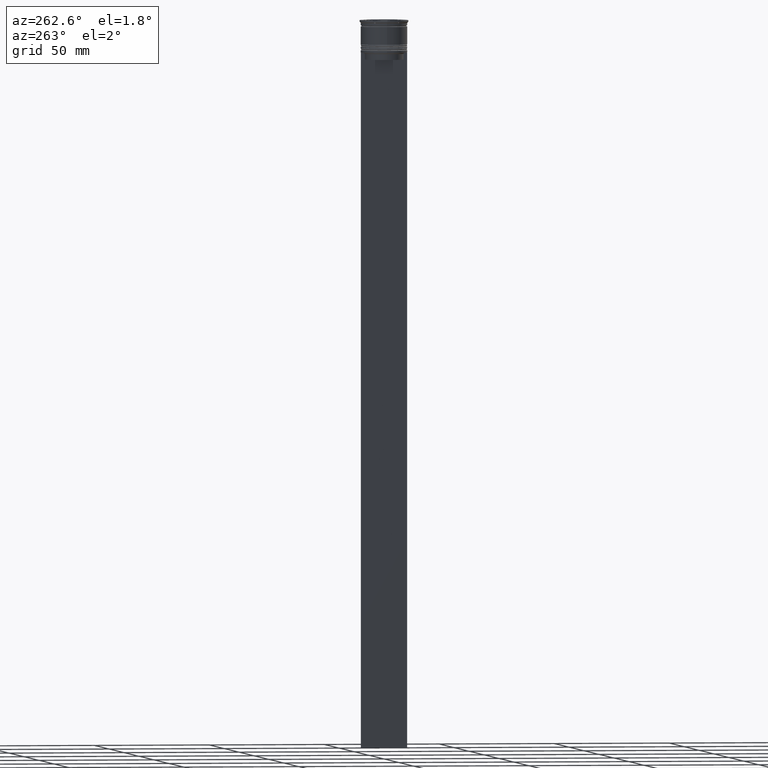
[diagram: clean part render]
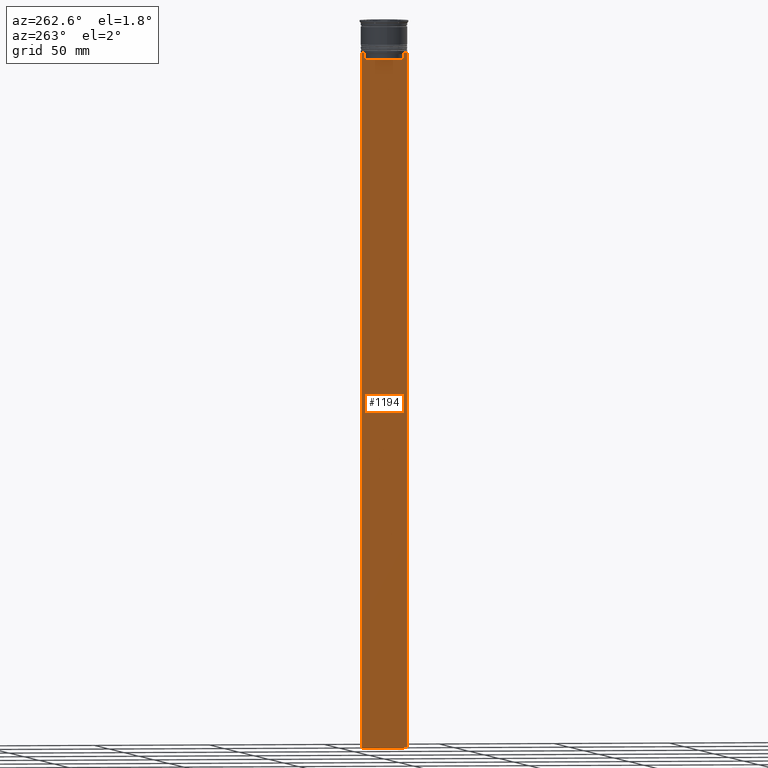
[diagram: same view with one face highlighted and labeled with its STEP entity id]
A machine part, auxiliary view. The second image highlights one B-rep face of the part: STEP entity #1194.
In plain terms, the highlighted planar face has unit normal (-1, 0, 0).
Its self-contained STEP definition (entity closure, byte-faithful):
#24 = VECTOR ( 'NONE', #210, 1000.000000000000000 ) ;
#39 = DIRECTION ( 'NONE',  ( 0.000000000000000000, 1.000000000000000000, 0.000000000000000000 ) ) ;
#84 = DIRECTION ( 'NONE',  ( 0.000000000000000000, 0.000000000000000000, -1.000000000000000000 ) ) ;
#210 = DIRECTION ( 'NONE',  ( 0.000000000000000000, -1.000000000000000000, 0.000000000000000000 ) ) ;
#305 = DIRECTION ( 'NONE',  ( 0.000000000000000000, -1.000000000000000000, 0.000000000000000000 ) ) ;
#307 = ORIENTED_EDGE ( 'NONE', *, *, #553, .F. ) ;
#330 = CARTESIAN_POINT ( 'NONE',  ( -0.5000000000000000000, -8.385105843100616241, -17.00000000000000000 ) ) ;
#364 = VECTOR ( 'NONE', #1389, 1000.000000000000000 ) ;
#365 = DIRECTION ( 'NONE',  ( -1.000000000000000000, 0.000000000000000000, 0.000000000000000000 ) ) ;
#379 = DIRECTION ( 'NONE',  ( 0.000000000000000000, 0.000000000000000000, -1.000000000000000000 ) ) ;
#400 = VECTOR ( 'NONE', #379, 1000.000000000000000 ) ;
#404 = CARTESIAN_POINT ( 'NONE',  ( -0.5000000000000000000, 8.885943956609230199, -14.00000000000000178 ) ) ;
#420 = EDGE_CURVE ( 'NONE', #2131, #2419, #1682, .T. ) ;
#446 = CARTESIAN_POINT ( 'NONE',  ( -0.5000000000000000000, -10.00000000000000178, -14.00000000000000178 ) ) ;
#473 = CARTESIAN_POINT ( 'NONE',  ( -0.5000000000000000000, 8.400000000000003908, -17.00000000000000000 ) ) ;
#511 = CARTESIAN_POINT ( 'NONE',  ( -0.5000000000000000000, -10.00000000000000178, -14.00000000000000178 ) ) ;
#534 = CARTESIAN_POINT ( 'NONE',  ( -0.5000000000000000000, 8.885943956609230199, -14.00000000000000178 ) ) ;
#553 = EDGE_CURVE ( 'NONE', #2419, #1546, #1567, .T. ) ;
#633 = LINE ( 'NONE', #2560, #1360 ) ;
#687 = CARTESIAN_POINT ( 'NONE',  ( -0.5000000000000000000, -10.00000000000000178, -14.00000000000000178 ) ) ;
#708 = ORIENTED_EDGE ( 'NONE', *, *, #1463, .F. ) ;
#729 = VERTEX_POINT ( 'NONE', #330 ) ;
#781 = CARTESIAN_POINT ( 'NONE',  ( -0.5000000000000000000, -10.00000000000000178, 6.024984394500783047 ) ) ;
#787 = CARTESIAN_POINT ( 'NONE',  ( -0.5000000000000000000, -8.385105843100616241, 0.000000000000000000 ) ) ;
#818 = LINE ( 'NONE', #1871, #2546 ) ;
#899 = VERTEX_POINT ( 'NONE', #404 ) ;
#903 = ORIENTED_EDGE ( 'NONE', *, *, #1733, .F. ) ;
#939 = CARTESIAN_POINT ( 'NONE',  ( -0.5000000000000000000, -8.385105843100616241, -14.50000000000000000 ) ) ;
#944 = CARTESIAN_POINT ( 'NONE',  ( -0.5000000000000000000, 8.385105843100616241, 0.000000000000000000 ) ) ;
#957 = VERTEX_POINT ( 'NONE', #446 ) ;
#984 = EDGE_CURVE ( 'NONE', #1068, #1340, #1777, .T. ) ;
#1019 = ORIENTED_EDGE ( 'NONE', *, *, #1878, .F. ) ;
#1068 = VERTEX_POINT ( 'NONE', #1334 ) ;
#1069 = CARTESIAN_POINT ( 'NONE',  ( -0.5000000000000000000, 8.385105843100616241, -17.00000000000000000 ) ) ;
#1097 = LINE ( 'NONE', #1949, #2538 ) ;
#1121 = DIRECTION ( 'NONE',  ( 0.000000000000000000, -1.000000000000000000, 0.000000000000000000 ) ) ;
#1125 = ORIENTED_EDGE ( 'NONE', *, *, #2284, .T. ) ;
#1142 = DIRECTION ( 'NONE',  ( 0.000000000000000000, 0.000000000000000000, -1.000000000000000000 ) ) ;
#1194 = ADVANCED_FACE ( 'NONE', ( #2394 ), #2056, .T. ) ;
#1230 = EDGE_CURVE ( 'NONE', #899, #1068, #1876, .T. ) ;
#1244 = LINE ( 'NONE', #2289, #24 ) ;
#1284 = VERTEX_POINT ( 'NONE', #2004 ) ;
#1332 = CARTESIAN_POINT ( 'NONE',  ( -0.5000000000000000000, -9.887365675446622149, -14.00000000000000178 ) ) ;
#1334 = CARTESIAN_POINT ( 'NONE',  ( -0.5000000000000000000, 8.385105843100616241, -14.50000000000000000 ) ) ;
#1340 = VERTEX_POINT ( 'NONE', #1069 ) ;
#1352 = ORIENTED_EDGE ( 'NONE', *, *, #1854, .F. ) ;
#1360 = VECTOR ( 'NONE', #84, 1000.000000000000000 ) ;
#1389 = DIRECTION ( 'NONE',  ( -0.000000000000000000, -0.000000000000000000, 1.000000000000000000 ) ) ;
#1394 = DIRECTION ( 'NONE',  ( 0.000000000000000000, -1.000000000000000000, 0.000000000000000000 ) ) ;
#1397 = CARTESIAN_POINT ( 'NONE',  ( -0.5000000000000000000, 8.552060201981381837, -14.33334167021640226 ) ) ;
#1423 = LINE ( 'NONE', #2263, #400 ) ;
#1463 = EDGE_CURVE ( 'NONE', #2588, #1967, #1963, .T. ) ;
#1503 = CARTESIAN_POINT ( 'NONE',  ( -0.5000000000000000000, -8.885943956609230199, -14.00000000000000178 ) ) ;
#1546 = VERTEX_POINT ( 'NONE', #1332 ) ;
#1557 = EDGE_CURVE ( 'NONE', #1967, #899, #1097, .T. ) ;
#1567 = LINE ( 'NONE', #511, #2235 ) ;
#1578 = ORIENTED_EDGE ( 'NONE', *, *, #1557, .F. ) ;
#1592 = ORIENTED_EDGE ( 'NONE', *, *, #984, .F. ) ;
#1622 = CARTESIAN_POINT ( 'NONE',  ( -0.5000000000000000000, 8.719005771582351016, -14.16667453442324742 ) ) ;
#1682 = B_SPLINE_CURVE_WITH_KNOTS ( 'NONE', 3,
 ( #1846, #2444, #2664, #1867 ),
 .UNSPECIFIED., .F., .F.,
 ( 4, 4 ),
 ( 0.03898465126933132324, 0.03969388910599660342 ),
 .UNSPECIFIED. ) ;
#1705 = AXIS2_PLACEMENT_3D ( 'NONE', #781, #365, #2409 ) ;
#1733 = EDGE_CURVE ( 'NONE', #1546, #957, #1244, .T. ) ;
#1777 = LINE ( 'NONE', #944, #2576 ) ;
#1827 = LINE ( 'NONE', #787, #364 ) ;
#1846 = CARTESIAN_POINT ( 'NONE',  ( -0.5000000000000000000, -8.385105843100616241, -14.50000000000000000 ) ) ;
#1854 = EDGE_CURVE ( 'NONE', #957, #2572, #633, .T. ) ;
#1867 = CARTESIAN_POINT ( 'NONE',  ( -0.5000000000000000000, -8.885943956609230199, -14.00000000000000178 ) ) ;
#1871 = CARTESIAN_POINT ( 'NONE',  ( -0.5000000000000000000, -10.00000000000000178, -314.0000000000000000 ) ) ;
#1876 = B_SPLINE_CURVE_WITH_KNOTS ( 'NONE', 3,
 ( #534, #1622, #1397, #2627 ),
 .UNSPECIFIED., .F., .F.,
 ( 4, 4 ),
 ( 0.01511546479386908018, 0.01582316445439079997 ),
 .UNSPECIFIED. ) ;
#1878 = EDGE_CURVE ( 'NONE', #1340, #729, #2139, .T. ) ;
#1930 = ORIENTED_EDGE ( 'NONE', *, *, #420, .F. ) ;
#1938 = VECTOR ( 'NONE', #305, 1000.000000000000000 ) ;
#1949 = CARTESIAN_POINT ( 'NONE',  ( -0.5000000000000000000, -10.00000000000000178, -14.00000000000000178 ) ) ;
#1963 = LINE ( 'NONE', #687, #1938 ) ;
#1967 = VERTEX_POINT ( 'NONE', #2366 ) ;
#2004 = CARTESIAN_POINT ( 'NONE',  ( -0.5000000000000000000, 9.999999999999998224, -314.0000000000000000 ) ) ;
#2053 = ORIENTED_EDGE ( 'NONE', *, *, #2504, .F. ) ;
#2056 = PLANE ( 'NONE',  #1705 ) ;
#2131 = VERTEX_POINT ( 'NONE', #939 ) ;
#2139 = LINE ( 'NONE', #473, #2582 ) ;
#2220 = CARTESIAN_POINT ( 'NONE',  ( -0.5000000000000000000, 9.999999999999994671, -14.00000000000000178 ) ) ;
#2231 = CARTESIAN_POINT ( 'NONE',  ( -0.5000000000000000000, -10.00000000000000178, -314.0000000000000000 ) ) ;
#2235 = VECTOR ( 'NONE', #2375, 1000.000000000000000 ) ;
#2263 = CARTESIAN_POINT ( 'NONE',  ( -0.5000000000000000000, 9.999999999999998224, 6.024984394500783047 ) ) ;
#2284 = EDGE_CURVE ( 'NONE', #2588, #1284, #1423, .T. ) ;
#2289 = CARTESIAN_POINT ( 'NONE',  ( -0.5000000000000000000, -10.00000000000000178, -14.00000000000000178 ) ) ;
#2335 = EDGE_LOOP ( 'NONE', ( #2562, #1578, #708, #1125, #2053, #1352, #903, #307, #1930, #2590, #1019, #1592 ) ) ;
#2366 = CARTESIAN_POINT ( 'NONE',  ( -0.5000000000000000000, 9.887365675446622149, -14.00000000000000178 ) ) ;
#2375 = DIRECTION ( 'NONE',  ( 0.000000000000000000, -1.000000000000000000, 0.000000000000000000 ) ) ;
#2394 = FACE_OUTER_BOUND ( 'NONE', #2335, .T. ) ;
#2409 = DIRECTION ( 'NONE',  ( 0.000000000000000000, 0.000000000000000000, 1.000000000000000000 ) ) ;
#2419 = VERTEX_POINT ( 'NONE', #1503 ) ;
#2444 = CARTESIAN_POINT ( 'NONE',  ( -0.5000000000000000000, -8.552060194457769882, -14.33334167772667200 ) ) ;
#2504 = EDGE_CURVE ( 'NONE', #2572, #1284, #818, .T. ) ;
#2538 = VECTOR ( 'NONE', #1394, 1000.000000000000000 ) ;
#2546 = VECTOR ( 'NONE', #39, 1000.000000000000000 ) ;
#2560 = CARTESIAN_POINT ( 'NONE',  ( -0.5000000000000000000, -10.00000000000000178, 6.024984394500783047 ) ) ;
#2562 = ORIENTED_EDGE ( 'NONE', *, *, #1230, .F. ) ;
#2572 = VERTEX_POINT ( 'NONE', #2231 ) ;
#2576 = VECTOR ( 'NONE', #1142, 1000.000000000000000 ) ;
#2582 = VECTOR ( 'NONE', #1121, 1000.000000000000000 ) ;
#2588 = VERTEX_POINT ( 'NONE', #2220 ) ;
#2590 = ORIENTED_EDGE ( 'NONE', *, *, #2672, .F. ) ;
#2627 = CARTESIAN_POINT ( 'NONE',  ( -0.5000000000000000000, 8.385105843100616241, -14.50000000000000000 ) ) ;
#2664 = CARTESIAN_POINT ( 'NONE',  ( -0.5000000000000000000, -8.719005764482790966, -14.16667454151159689 ) ) ;
#2672 = EDGE_CURVE ( 'NONE', #729, #2131, #1827, .T. ) ;